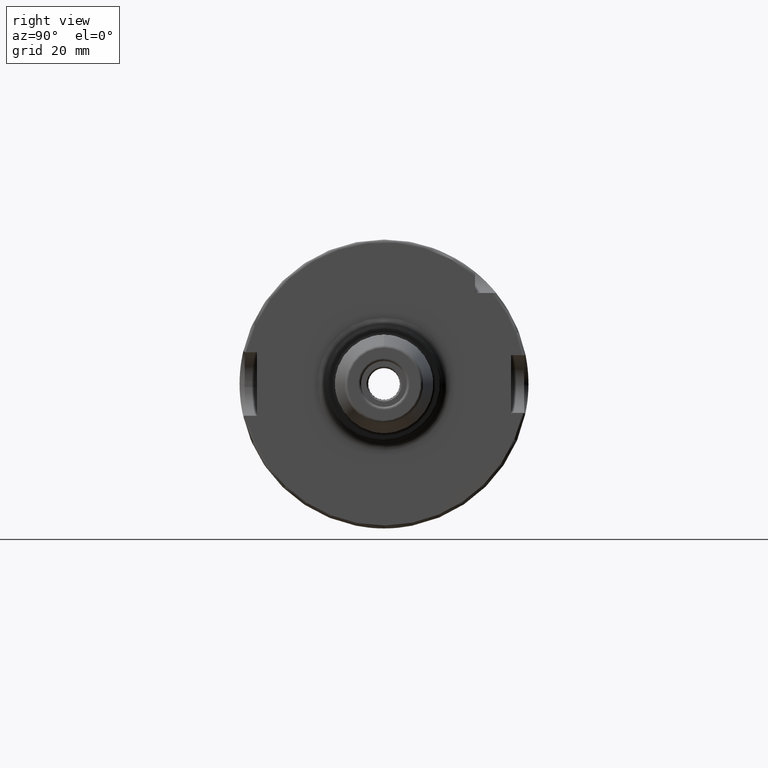
[diagram: clean part render]
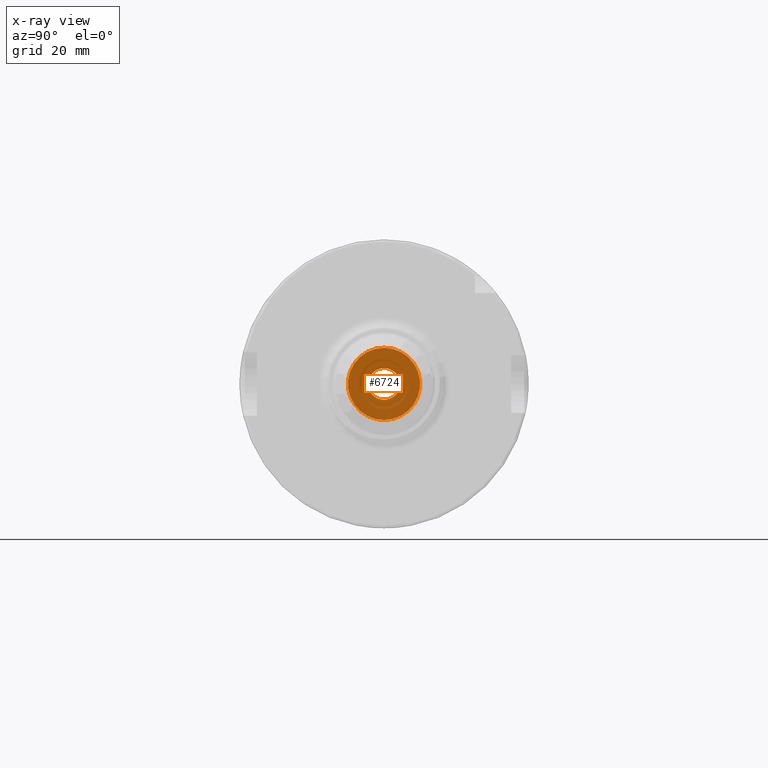
[diagram: x-ray — body ghosted, one internal face saturated and labeled with its STEP entity id]
A machine part, right view, then the same camera in x-ray: the body is ghosted and one INTERNAL B-rep face — a face not visible from any outside direction — is saturated and labeled: STEP entity #6724.
In plain terms, the highlighted planar face has unit normal (1, 0, 0).
Its self-contained STEP definition (entity closure, byte-faithful):
#2673=CARTESIAN_POINT('',(2.85E1,0.E0,0.E0));
#2674=DIRECTION('',(1.E0,0.E0,0.E0));
#2675=DIRECTION('',(0.E0,0.E0,1.E0));
#2676=AXIS2_PLACEMENT_3D('',#2673,#2674,#2675);
#2678=CARTESIAN_POINT('',(2.85E1,0.E0,0.E0));
#2679=DIRECTION('',(1.E0,0.E0,0.E0));
#2680=DIRECTION('',(0.E0,0.E0,-1.E0));
#2681=AXIS2_PLACEMENT_3D('',#2678,#2679,#2680);
#2683=CARTESIAN_POINT('',(2.85E1,0.E0,0.E0));
#2684=DIRECTION('',(-1.E0,0.E0,0.E0));
#2685=DIRECTION('',(0.E0,1.E0,0.E0));
#2686=AXIS2_PLACEMENT_3D('',#2683,#2684,#2685);
#2688=CARTESIAN_POINT('',(2.85E1,0.E0,0.E0));
#2689=DIRECTION('',(-1.E0,0.E0,0.E0));
#2690=DIRECTION('',(0.E0,-1.E0,0.E0));
#2691=AXIS2_PLACEMENT_3D('',#2688,#2689,#2690);
#3539=CARTESIAN_POINT('',(2.85E1,-5.5E0,0.E0));
#3540=VERTEX_POINT('',#3539);
#3541=CARTESIAN_POINT('',(2.85E1,5.5E0,0.E0));
#3542=VERTEX_POINT('',#3541);
#3543=CARTESIAN_POINT('',(2.85E1,0.E0,1.25E1));
#3544=CARTESIAN_POINT('',(2.85E1,0.E0,-1.25E1));
#3545=VERTEX_POINT('',#3543);
#3546=VERTEX_POINT('',#3544);
#6709=CARTESIAN_POINT('',(2.85E1,0.E0,0.E0));
#6710=DIRECTION('',(1.E0,0.E0,0.E0));
#6711=DIRECTION('',(0.E0,0.E0,1.E0));
#6712=AXIS2_PLACEMENT_3D('',#6709,#6710,#6711);
#6713=PLANE('',#6712);
#6715=ORIENTED_EDGE('',*,*,#6714,.T.);
#6717=ORIENTED_EDGE('',*,*,#6716,.T.);
#6718=EDGE_LOOP('',(#6715,#6717));
#6719=FACE_OUTER_BOUND('',#6718,.F.);
#6720=ORIENTED_EDGE('',*,*,#6689,.T.);
#6721=ORIENTED_EDGE('',*,*,#6703,.T.);
#6722=EDGE_LOOP('',(#6720,#6721));
#6723=FACE_BOUND('',#6722,.F.);
#6724=ADVANCED_FACE('',(#6719,#6723),#6713,.F.);
#2677=CIRCLE('',#2676,1.25E1);
#2682=CIRCLE('',#2681,1.25E1);
#2687=CIRCLE('',#2686,5.5E0);
#2692=CIRCLE('',#2691,5.5E0);
#6689=EDGE_CURVE('',#3542,#3540,#2687,.T.);
#6703=EDGE_CURVE('',#3540,#3542,#2692,.T.);
#6714=EDGE_CURVE('',#3545,#3546,#2677,.T.);
#6716=EDGE_CURVE('',#3546,#3545,#2682,.T.);